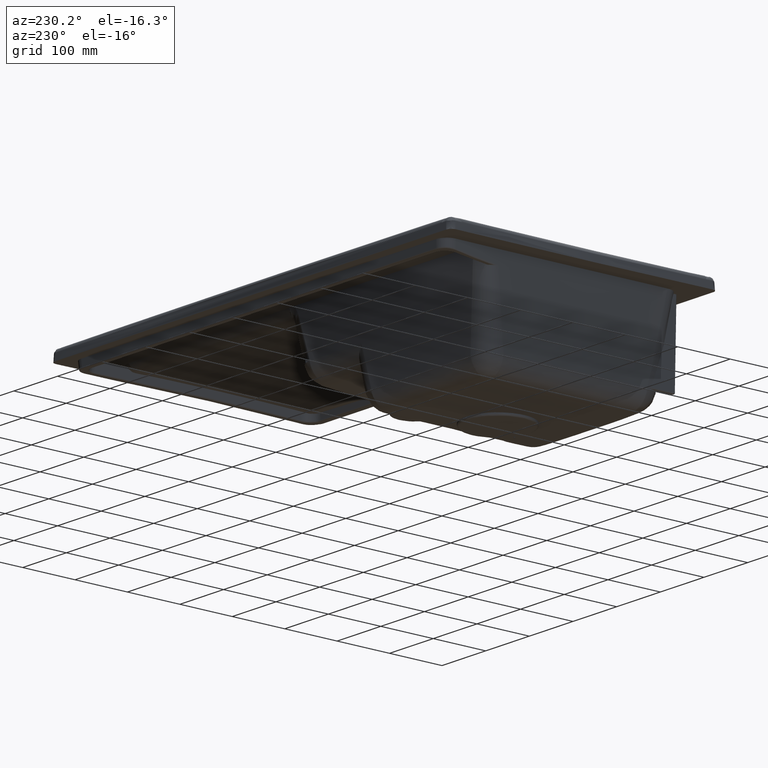
[diagram: clean part render]
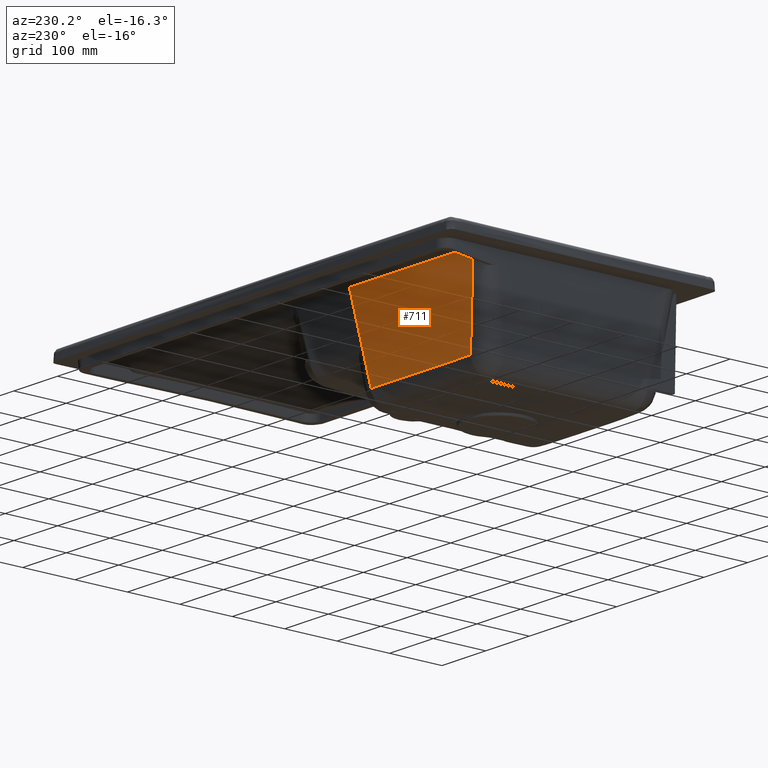
[diagram: same view with one face highlighted and labeled with its STEP entity id]
A machine part, auxiliary view. The second image highlights one B-rep face of the part: STEP entity #711.
In plain terms, the highlighted face is a freeform B-spline surface patch.
Its self-contained STEP definition (entity closure, byte-faithful):
#711=ADVANCED_FACE('',(#1164),#867,.T.);
#867=B_SPLINE_SURFACE_WITH_KNOTS('',3,3,((#29116,#29117,#29118,#29119),
(#29120,#29121,#29122,#29123),(#29124,#29125,#29126,#29127),(#29128,#29129,
#29130,#29131),(#29132,#29133,#29134,#29135),(#29136,#29137,#29138,#29139),
(#29140,#29141,#29142,#29143),(#29144,#29145,#29146,#29147),(#29148,#29149,
#29150,#29151),(#29152,#29153,#29154,#29155)),.UNSPECIFIED.,.F.,.F.,.F.,
(4,3,3,4),(4,4),(0.,0.500000064019463,0.750000096029195,1.),(0.,1.),
 .UNSPECIFIED.);
#1164=FACE_OUTER_BOUND('',#1491,.T.);
#1491=EDGE_LOOP('',(#2841,#2842,#2843,#2844,#2845,#2846,#2847,#2848,#2849));
#2841=ORIENTED_EDGE('',*,*,#4085,.F.);
#2842=ORIENTED_EDGE('',*,*,#4089,.F.);
#2843=ORIENTED_EDGE('',*,*,#4092,.F.);
#2844=ORIENTED_EDGE('',*,*,#4277,.T.);
#2845=ORIENTED_EDGE('',*,*,#4231,.T.);
#2846=ORIENTED_EDGE('',*,*,#4230,.T.);
#2847=ORIENTED_EDGE('',*,*,#4278,.F.);
#2848=ORIENTED_EDGE('',*,*,#4279,.F.);
#2849=ORIENTED_EDGE('',*,*,#4106,.F.);
#3418=VERTEX_POINT('',#17747);
#3419=VERTEX_POINT('',#17754);
#3420=VERTEX_POINT('',#17872);
#3422=VERTEX_POINT('',#17968);
#3430=VERTEX_POINT('',#18221);
#3507=VERTEX_POINT('',#23699);
#3508=VERTEX_POINT('',#23700);
#3509=VERTEX_POINT('',#23705);
#3532=VERTEX_POINT('',#28834);
#4085=EDGE_CURVE('',#3418,#3419,#4701,.T.);
#4089=EDGE_CURVE('',#3420,#3418,#4705,.T.);
#4092=EDGE_CURVE('',#3422,#3420,#4708,.T.);
#4106=EDGE_CURVE('',#3419,#3430,#4722,.T.);
#4230=EDGE_CURVE('',#3507,#3508,#4827,.T.);
#4231=EDGE_CURVE('',#3509,#3507,#4828,.T.);
#4277=EDGE_CURVE('',#3422,#3509,#4869,.T.);
#4278=EDGE_CURVE('',#3532,#3508,#4870,.T.);
#4279=EDGE_CURVE('',#3430,#3532,#4871,.T.);
#4701=B_SPLINE_CURVE_WITH_KNOTS('',3,(#17748,#17749,#17750,#17751,#17752,
#17753),.UNSPECIFIED.,.F.,.F.,(4,2,4),(0.,0.5,1.),.UNSPECIFIED.);
#4705=B_SPLINE_CURVE_WITH_KNOTS('',3,(#17873,#17874,#17875,#17876),
 .UNSPECIFIED.,.F.,.F.,(4,4),(0.,1.),.UNSPECIFIED.);
#4708=B_SPLINE_CURVE_WITH_KNOTS('',3,(#17969,#17970,#17971,#17972),
 .UNSPECIFIED.,.F.,.F.,(4,4),(0.,1.),.UNSPECIFIED.);
#4722=B_SPLINE_CURVE_WITH_KNOTS('',3,(#18222,#18223,#18224,#18225,#18226,
#18227,#18228,#18229,#18230,#18231,#18232,#18233,#18234,#18235,#18236,#18237,
#18238,#18239,#18240,#18241,#18242,#18243,#18244,#18245,#18246,#18247),
 .UNSPECIFIED.,.F.,.F.,(4,2,2,2,2,2,2,2,1,2,2,1,1,1,4),(0.,0.500000000000075,
0.507812500000075,0.515625000000075,0.531250000000074,0.562500000000065,
0.625000000000052,0.750000000000025,0.765625000000021,0.769531250000021,
0.773437500000021,0.78125000000002,0.812500000000017,0.875000000000011,
1.),.UNSPECIFIED.);
#4827=B_SPLINE_CURVE_WITH_KNOTS('',3,(#23695,#23696,#23697,#23698),
 .UNSPECIFIED.,.F.,.F.,(4,4),(0.,1.),.UNSPECIFIED.);
#4828=B_SPLINE_CURVE_WITH_KNOTS('',3,(#23701,#23702,#23703,#23704),
 .UNSPECIFIED.,.F.,.F.,(4,4),(0.,1.),.UNSPECIFIED.);
#4869=B_SPLINE_CURVE_WITH_KNOTS('',3,(#29049,#29050,#29051,#29052),
 .UNSPECIFIED.,.F.,.F.,(4,4),(0.,1.),.UNSPECIFIED.);
#4870=B_SPLINE_CURVE_WITH_KNOTS('',3,(#29105,#29106,#29107,#29108,#29109,
#29110,#29111),.UNSPECIFIED.,.F.,.F.,(4,3,4),(0.,0.49699999998763,1.),
 .UNSPECIFIED.);
#4871=B_SPLINE_CURVE_WITH_KNOTS('',3,(#29112,#29113,#29114,#29115),
 .UNSPECIFIED.,.F.,.F.,(4,4),(0.,1.),.UNSPECIFIED.);
#17747=CARTESIAN_POINT('',(-155.848685272646,189.548545724588,-16.5263106875699));
#17748=CARTESIAN_POINT('',(-155.84866112279,189.547240530669,-16.5260886799056));
#17749=CARTESIAN_POINT('',(-190.87188536422,189.498165714138,-16.5259692110635));
#17750=CARTESIAN_POINT('',(-225.896594587307,189.408567483689,-16.5258248646765));
#17751=CARTESIAN_POINT('',(-295.948429008097,189.103708645617,-16.5255806057363));
#17752=CARTESIAN_POINT('',(-330.975443362705,188.88509431367,-16.5254596065014));
#17753=CARTESIAN_POINT('',(-366.003975019331,188.713462771381,-16.5253375906586));
#17754=CARTESIAN_POINT('',(-365.983134005551,188.713567475949,-16.5253376445245));
#17872=CARTESIAN_POINT('',(-171.588571778078,179.799050828763,-103.587463472606));
#17873=CARTESIAN_POINT('',(-171.588740220038,179.799485492219,-103.587483254898));
#17874=CARTESIAN_POINT('',(-166.341297348253,183.044689545613,-74.5673051058879));
#17875=CARTESIAN_POINT('',(-161.094220949119,186.293933288304,-45.5471296281128));
#17876=CARTESIAN_POINT('',(-155.848742346017,189.547077362849,-16.526946390341));
#17968=CARTESIAN_POINT('',(-171.645484548169,179.76486440394,-103.887311882729));
#17969=CARTESIAN_POINT('',(-171.643150560789,179.764755708204,-103.887725045262));
#17970=CARTESIAN_POINT('',(-171.624962162658,179.776815119635,-103.787537479074));
#17971=CARTESIAN_POINT('',(-171.606809837871,179.788432519248,-103.687463252041));
#17972=CARTESIAN_POINT('',(-171.588694070833,179.799609549132,-103.587508506894));
#18221=CARTESIAN_POINT('',(-437.6265835083,188.409417079851,-16.9424515033228));
#18222=CARTESIAN_POINT('',(-366.003977193759,188.713462760498,-16.5253375906528));
#18223=CARTESIAN_POINT('',(-372.564829846795,188.680504688722,-16.5253207008564));
#18224=CARTESIAN_POINT('',(-384.34112087028,188.618524616512,-16.5368842976484));
#18225=CARTESIAN_POINT('',(-401.634162788068,188.521026496616,-16.8436559516213));
#18226=CARTESIAN_POINT('',(-401.901492174248,188.519517993456,-16.8484515481486));
#18227=CARTESIAN_POINT('',(-402.438716519911,188.516483833333,-16.8581979127767));
#18228=CARTESIAN_POINT('',(-402.773106418049,188.514551679078,-16.8643566307876));
#18229=CARTESIAN_POINT('',(-402.880533810008,188.514138422694,-16.866334042051));
#18230=CARTESIAN_POINT('',(-402.970334366571,188.51429713928,-16.867975084012));
#18231=CARTESIAN_POINT('',(-403.294268819446,188.516072014964,-16.8738875083862));
#18232=CARTESIAN_POINT('',(-403.584684990119,188.517199672747,-16.8793289913329));
#18233=CARTESIAN_POINT('',(-404.694033503906,188.505191442819,-16.8998806469023));
#18234=CARTESIAN_POINT('',(-405.730938907227,188.497253121212,-16.9182999252728));
#18235=CARTESIAN_POINT('',(-409.72992978952,188.47359548194,-16.979475540031));
#18236=CARTESIAN_POINT('',(-413.581128950914,188.458020791804,-17.0296448022579));
#18237=CARTESIAN_POINT('',(-419.224548685552,188.440478996341,-17.0513162527077));
#18238=CARTESIAN_POINT('',(-420.031092776559,188.438042678276,-17.0536843148243));
#18239=CARTESIAN_POINT('',(-420.865972401758,188.435606461881,-17.055086509547));
#18240=CARTESIAN_POINT('',(-421.202189290076,188.434631991969,-17.0555666415443));
#18241=CARTESIAN_POINT('',(-421.284759710704,188.434394895285,-17.0556578927378));
#18242=CARTESIAN_POINT('',(-421.569124154055,188.433583233178,-17.0559666325627));
#18243=CARTESIAN_POINT('',(-422.516522698479,188.430922640881,-17.0567279995073));
#18244=CARTESIAN_POINT('',(-424.973474601708,188.424588701264,-17.0552371137265));
#18245=CARTESIAN_POINT('',(-430.232759132836,188.413948194819,-17.0343036564041));
#18246=CARTESIAN_POINT('',(-434.684380117063,188.409922580373,-16.9867234479983));
#18247=CARTESIAN_POINT('',(-437.626719490578,188.409458606364,-16.9424880774646));
#23695=CARTESIAN_POINT('',(-206.459249550264,171.977569005219,-173.581276259681));
#23696=CARTESIAN_POINT('',(-257.728716440641,171.97284733498,-173.570436206416));
#23697=CARTESIAN_POINT('',(-308.991062421201,171.960755849391,-173.543580448345));
#23698=CARTESIAN_POINT('',(-360.272811152147,171.95051197007,-173.520882779531));
#23699=CARTESIAN_POINT('',(-206.459249547156,171.97754212617,-173.581273266043));
#23700=CARTESIAN_POINT('',(-360.272811022919,171.951045099,-173.520940797794));
#23701=CARTESIAN_POINT('',(-184.247529952441,171.979362327622,-173.585405030018));
#23702=CARTESIAN_POINT('',(-191.65161220527,171.978840156203,-173.584196321435));
#23703=CARTESIAN_POINT('',(-199.055539430749,171.97825087257,-173.582841448249));
#23704=CARTESIAN_POINT('',(-206.459249551671,171.977568218745,-173.581283328488));
#23705=CARTESIAN_POINT('',(-184.247518995508,171.979514481557,-173.585466553907));
#28834=CARTESIAN_POINT('',(-411.673447464757,171.941908945381,-173.503267730524));
#29049=CARTESIAN_POINT('',(-171.642752124094,179.764948628925,-103.887814481478));
#29050=CARTESIAN_POINT('',(-175.843065174035,177.166791190122,-127.120382002245));
#29051=CARTESIAN_POINT('',(-180.04429361322,174.571400049154,-150.352913359452));
#29052=CARTESIAN_POINT('',(-184.247529951457,171.979363041363,-173.585398631822));
#29105=CARTESIAN_POINT('',(-411.673437067531,171.941832838518,-173.501817402687));
#29106=CARTESIAN_POINT('',(-403.15766892129,171.942897828772,-173.50420578151));
#29107=CARTESIAN_POINT('',(-394.642032803424,171.944184008771,-173.507058149123));
#29108=CARTESIAN_POINT('',(-386.126638579121,171.945627995078,-173.5102580007));
#29109=CARTESIAN_POINT('',(-377.50844281446,171.947089413815,-173.513496482276));
#29110=CARTESIAN_POINT('',(-368.890479853072,171.948713053745,-173.517085235784));
#29111=CARTESIAN_POINT('',(-360.272811044479,171.950436494226,-173.520874710859));
#29112=CARTESIAN_POINT('',(-437.626428255973,188.409365531298,-16.9424927651902));
#29113=CARTESIAN_POINT('',(-428.892719492851,182.936174331484,-69.1089634996276));
#29114=CARTESIAN_POINT('',(-420.223828263791,177.453177937211,-121.299382032928));
#29115=CARTESIAN_POINT('',(-411.673434609207,171.941806553644,-173.501758754863));
#29116=CARTESIAN_POINT('',(-439.563226142314,188.653457965344,-14.5919236830216));
#29117=CARTESIAN_POINT('',(-439.573305132875,183.048817442277,-67.8758264355913));
#29118=CARTESIAN_POINT('',(-439.583337183631,177.444171310363,-121.159728613577));
#29119=CARTESIAN_POINT('',(-439.593321415085,171.839519350036,-174.443630194173));
#29120=CARTESIAN_POINT('',(-391.71889557643,188.730868360694,-14.5984626908982));
#29121=CARTESIAN_POINT('',(-391.815988823842,183.101250974716,-67.882388942641));
#29122=CARTESIAN_POINT('',(-391.91295240708,177.471606006131,-121.166312422349));
#29123=CARTESIAN_POINT('',(-392.009784188688,171.841932419431,-174.450233023376));
#29124=CARTESIAN_POINT('',(-343.942324552028,189.041240752496,-14.6246146682154));
#29125=CARTESIAN_POINT('',(-344.104632423531,183.311636060726,-67.9086316301281));
#29126=CARTESIAN_POINT('',(-344.266886323522,177.581948135813,-121.192639751526));
#29127=CARTESIAN_POINT('',(-344.429088560274,171.852176278861,-174.476638947718));
#29128=CARTESIAN_POINT('',(-296.447542685446,189.295324114184,-14.646298454197));
#29129=CARTESIAN_POINT('',(-296.585083568757,183.483765020456,-67.9302857330935));
#29130=CARTESIAN_POINT('',(-296.722668132973,177.67214275475,-121.214265988919));
#29131=CARTESIAN_POINT('',(-296.86029711472,171.860457993915,-174.498239293257));
#29132=CARTESIAN_POINT('',(-272.700151752155,189.422365795028,-14.6571403471877));
#29133=CARTESIAN_POINT('',(-272.82530914137,183.569829500321,-67.9411127845762));
#29134=CARTESIAN_POINT('',(-272.950559037699,177.717240064219,-121.225079107616));
#29135=CARTESIAN_POINT('',(-273.075901391943,171.864598851443,-174.509039466027));
#29136=CARTESIAN_POINT('',(-249.02341669557,189.530693998275,-14.6664351957292));
#29137=CARTESIAN_POINT('',(-249.113699040865,183.643195925077,-67.9503760195588));
#29138=CARTESIAN_POINT('',(-249.204060158231,177.755665007963,-121.234313063114));
#29139=CARTESIAN_POINT('',(-249.29449938381,171.868102072933,-174.518246419026));
#29140=CARTESIAN_POINT('',(-225.318675604948,189.604326454532,-14.6727391294806));
#29141=CARTESIAN_POINT('',(-225.383035445616,183.693055362466,-67.9566640109792));
#29142=CARTESIAN_POINT('',(-225.447448867604,177.781762784322,-121.240586429711));
#29143=CARTESIAN_POINT('',(-225.511915462126,171.870449196795,-174.524506439165));
#29144=CARTESIAN_POINT('',(-201.613946654842,189.677958873078,-14.6790430600034));
#29145=CARTESIAN_POINT('',(-201.652384004159,183.742914774318,-67.9629519991792));
#29146=CARTESIAN_POINT('',(-201.690849744059,177.807860547314,-121.246859793096));
#29147=CARTESIAN_POINT('',(-201.729343720827,171.872796319454,-174.530766456097));
#29148=CARTESIAN_POINT('',(-177.85101193068,189.720950357977,-14.6827083649717));
#29149=CARTESIAN_POINT('',(-177.882109197832,183.772013850223,-67.9666142566667));
#29150=CARTESIAN_POINT('',(-177.913209421446,177.823071388796,-121.250519481244));
#29151=CARTESIAN_POINT('',(-177.944312625977,171.874122987781,-174.53442404026));
#29152=CARTESIAN_POINT('',(-154.072883446113,189.755567211083,-14.6856591171587));
#29153=CARTESIAN_POINT('',(-154.10146481288,183.795440176176,-67.9695636843814));
#29154=CARTESIAN_POINT('',(-154.130049060002,177.83530847102,-121.253467727301));
#29155=CARTESIAN_POINT('',(-154.158636203482,171.875172107701,-174.537371247259));